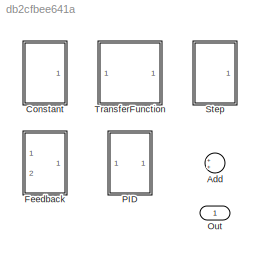
MODEL slx_db2cfbee641a
KIND model
CONFIG AbsTol = auto
CONFIG EnableMultiTasking = off
CONFIG FixedStep = auto
CONFIG MaxStep = auto
CONFIG MinStep = auto
CONFIG RelTol = 1e-3
CONFIG SampleTimeConstraint = Unconstrained
CONFIG Solver = VariableStepAuto
CONFIG SolverName = VariableStepAuto
CONFIG StartTime = 0.0
CONFIG StopTime = 50
BLOCK [Sum] Add
  Inputs = ++|
  Ports = [2, 1]
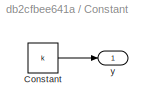
BLOCK [SubSystem] Constant
  Ports = [0, 1]
  RequestExecContextInheritance = off
BLOCK [Constant] Constant/Constant
  Value = k
BLOCK [Outport] Constant/y
  VectorParamsAs1DForOutWhenUnconnected = off
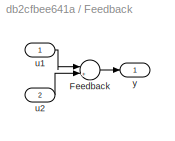
BLOCK [SubSystem] Feedback
  Ports = [2, 1]
  RequestExecContextInheritance = off
BLOCK [Sum] Feedback/Feedback
  Inputs = |+-
  Ports = [2, 1]
BLOCK [Inport] Feedback/u1
BLOCK [Inport] Feedback/u2
  Port = 2
BLOCK [Outport] Feedback/y
  VectorParamsAs1DForOutWhenUnconnected = off
BLOCK [Outport] Out
  VectorParamsAs1DForOutWhenUnconnected = off
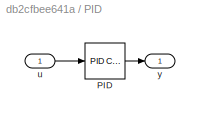
BLOCK [SubSystem] PID
  Ports = [1, 1]
  RequestExecContextInheritance = off
BLOCK [Reference] PID/PID  REF=simulink/Continuous/PID Controller
  Ports = [1, 1]
  SourceBlock = simulink/Continuous/PID Controller
  SourceProductBaseCode = SL
  SourceType = PID 1dof
BLOCK [Inport] PID/u
BLOCK [Outport] PID/y
  VectorParamsAs1DForOutWhenUnconnected = off
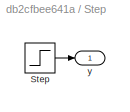
BLOCK [SubSystem] Step
  Ports = [0, 1]
  RequestExecContextInheritance = off
BLOCK [Step] Step/Step
  SampleTime = 0
  Time = startTime
BLOCK [Outport] Step/y
  VectorParamsAs1DForOutWhenUnconnected = off
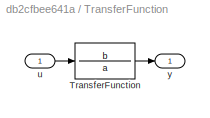
BLOCK [SubSystem] TransferFunction
  Ports = [1, 1]
  RequestExecContextInheritance = off
BLOCK [TransferFcn] TransferFunction/TransferFunction
  Denominator = a
  Numerator = b
BLOCK [Inport] TransferFunction/u
BLOCK [Outport] TransferFunction/y
  VectorParamsAs1DForOutWhenUnconnected = off
LINE Constant/Constant:1 -> Constant/y:1
LINE Feedback/Feedback:1 -> Feedback/y:1
LINE Feedback/u1:1 -> Feedback/Feedback:1
LINE Feedback/u2:1 -> Feedback/Feedback:2
LINE PID/PID:1 -> PID/y:1
LINE PID/u:1 -> PID/PID:1
LINE Step/Step:1 -> Step/y:1
LINE TransferFunction/TransferFunction:1 -> TransferFunction/y:1
LINE TransferFunction/u:1 -> TransferFunction/TransferFunction:1
